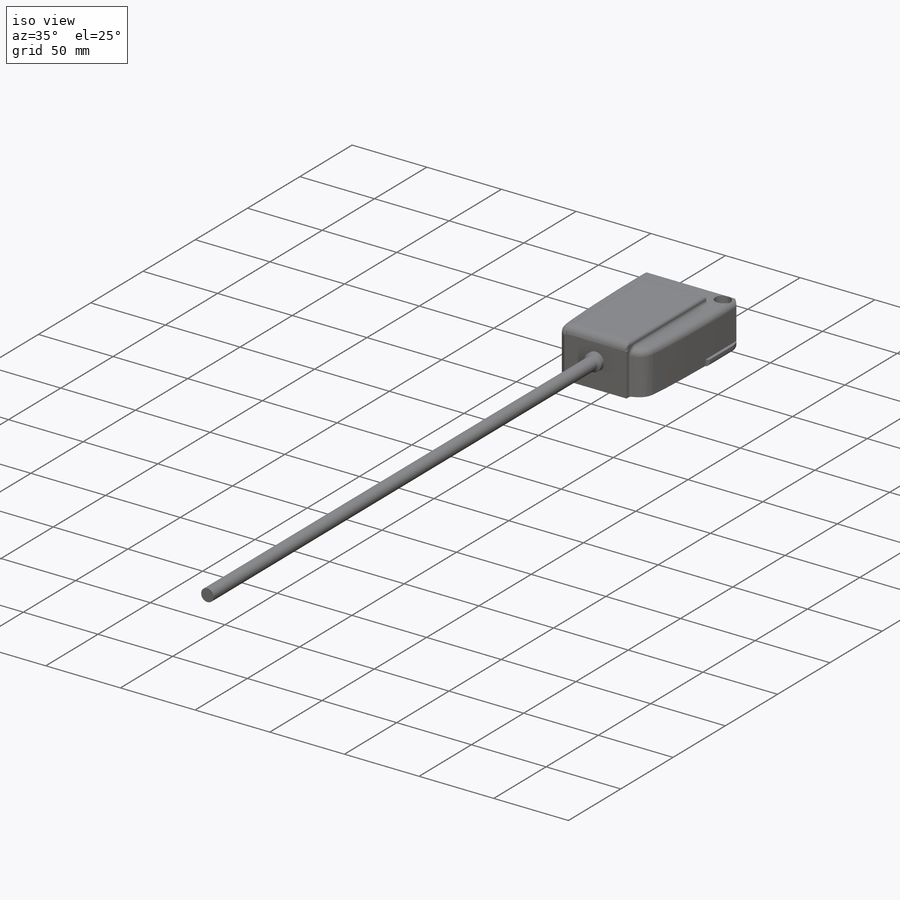
[diagram: iso view]
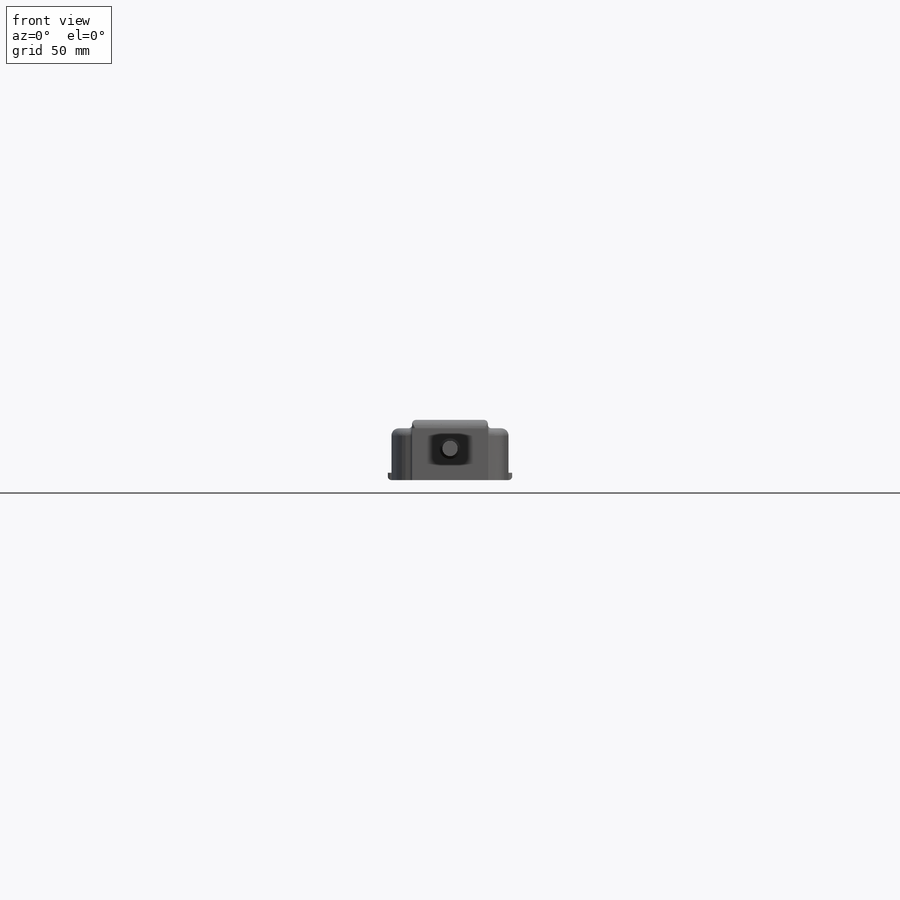
[diagram: front view]
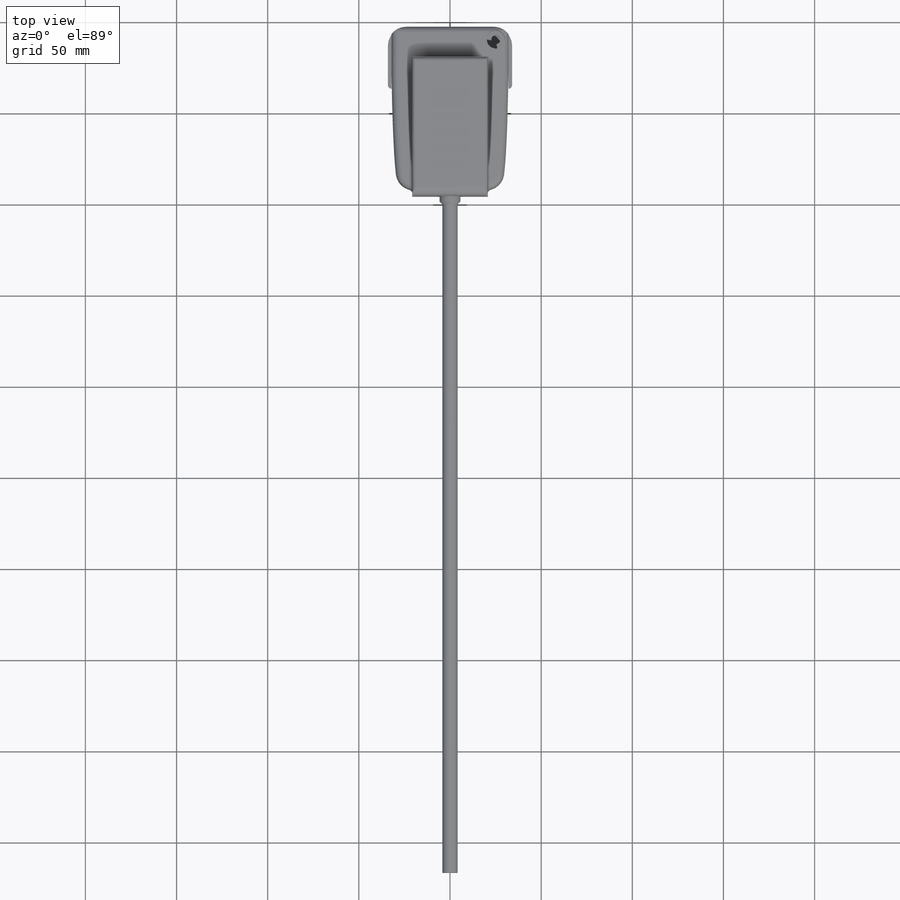
[diagram: top view]
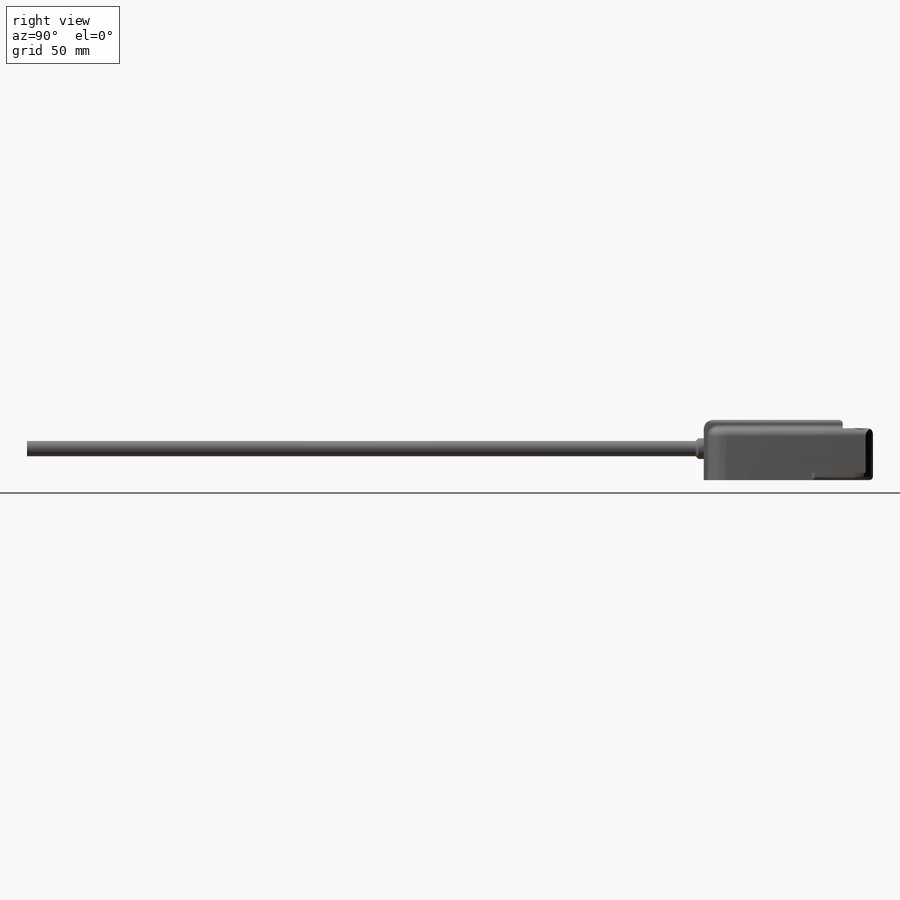
[diagram: right view]
SOLIDWORKS PART (.sldprt)
format: sldprt  version: not decoded by parser v0  size: 505,856 bytes
history: native  units: mm
features: sketch x13, cut_extrude x10, fillet x7, extrude x3, material x1, chamfer x1 (+14 scaffold rows collapsed)
feature tree (49):
  scaffold x14  (default folders/planes/origin — collapsed)
  material  "Material <not specified>"
  sketch  "Sketch1"  dims[D1=8.4mm]
  extrude  "Extrude1"  Depth=366.8mm
  sketch  "Sketch2"  dims[D1=11.4mm]
  extrude  "Extrude2"  Depth=4.4mm
  chamfer  "Chamfer1"  Distance=1.5mm Angle=45deg
  sketch  "Sketch3"  dims[c1.D4=11.4mm c1.D1=33.0mm c1.D2=68.2mm c1.D3=34.1mm c2.D4=17.25mm c2.D5=15.75mm]
  extrude  "Extrude3"  Depth=92.8mm
  sketch  "Sketch4"  dims[D1=4.6mm D2=16.6mm]
  cut_extrude  "Extrude4"  [1 undecoded]
  sketch  "Sketch5"  dims[c1.D1=41.5mm c1.D2=~12.796588mm c1.D3=68.2mm c2.D2=13.35mm c2.D3=13.35mm]
  cut_extrude  "Extrude5"  [1 undecoded]
  sketch  "Sketch6"  dims[D1=4.0mm D2=4.0mm D3=2.0mm D4=2.0mm]
  cut_extrude  "Extrude6"  [1 undecoded]
  sketch  "Sketch7"  dims[D1=33.5mm D2=33.5mm]
  cut_extrude  "Extrude7"  [1 undecoded]
  fillet  "Fillet2"  Radius=3mm
  fillet  "Fillet3"  Radius=10mm
  fillet  "Fillet20"  Radius=2mm
  fillet  "Fillet7"  Radius=2mm
  sketch  "Sketch10"  dims[D1=25.0mm D2=6.0mm]
  cut_extrude  "Extrude10"  [1 undecoded]
  sketch  "Sketch11"  dims[D1=3.5mm D2=3.5mm]
  cut_extrude  "Extrude11"  [1 undecoded]
  fillet  "Fillet9"  Radius=10mm
  fillet  "Fillet22"  Radius=4mm
  fillet  "Fillet13"  Radius=2mm
  sketch  "Sketch14"  dims[D3=10.0mm D1=5.0mm D2=5.0mm]
  cut_extrude  "Extrude12"  [1 undecoded]
  sketch  "Sketch15"  dims[D1=10.0mm D2=7.0mm D3=7.0mm]
  cut_extrude  "Extrude13"  Depth=10mm
  sketch  "Sketch16"  dims[D1=5.0mm]
  cut_extrude  "Extrude14"  Depth=10mm
  sketch  "Sketch17"  dims[c1.D1=15.0mm c1.D2=15.0mm c1.D3=15.0mm c1.D4=15.0mm c1.D26=15.0mm c1.D5=57.5mm c1.D6=57.5mm c1.D7=26.0mm c1.D8=26.0mm c1.D9=16.2mm c1.D10=18.5mm c1.D11=18.5mm c1.D12=16.2mm c1.D13=27.2mm c2.D10=31.8mm c2.D11=31.8mm c2.D13=16.2mm c2.D14=31.5mm c2.D5=31.8mm c2.D6=31.8mm c3.D14=4.0mm c3.D15=4.0mm c3.D16=4.0mm c3.D17=4.0mm c3.D18=8.0mm c3.D19=8.0mm c3.D20=4.0mm c3.D21=4.0mm c3.D22=8.0mm c3.D23=8.0mm c3.D24=4.0mm c3.D25=4.0mm c3.D26=8.0mm c3.D27=8.0mm c3.D28=4.0mm c3.D29=4.0mm]
  cut_extrude  "Extrude15"  Depth=3mm
decode coverage: 27 of 34 modeling features carry decoded parameters
note: ~ marks probable driven/reference dimensions
note: 7 parameter values undecoded
summary: no parameter record found for 7 features
note: suppression state not decoded; provenance and decode notes live in map.json
